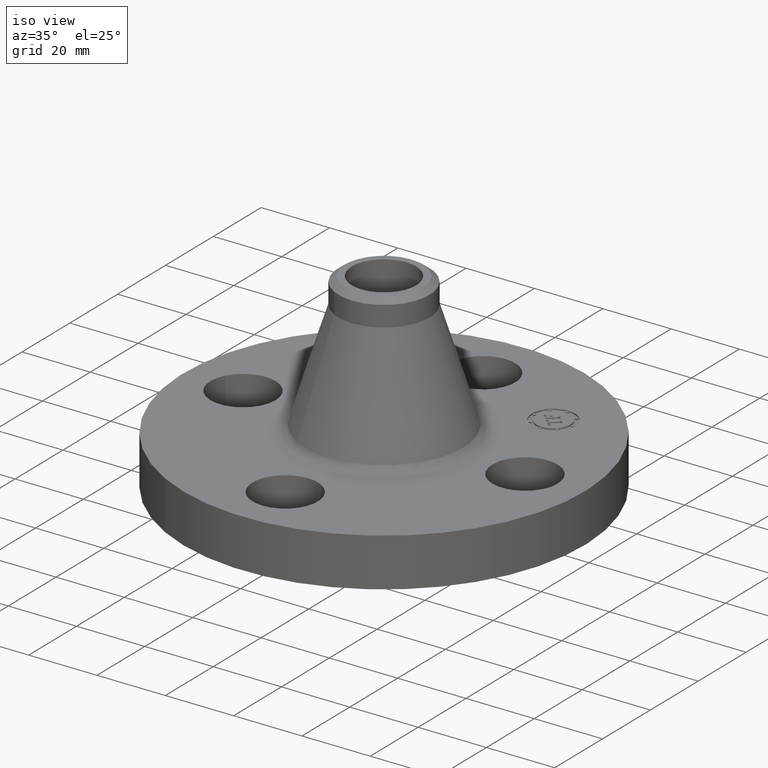
[diagram: clean part render]
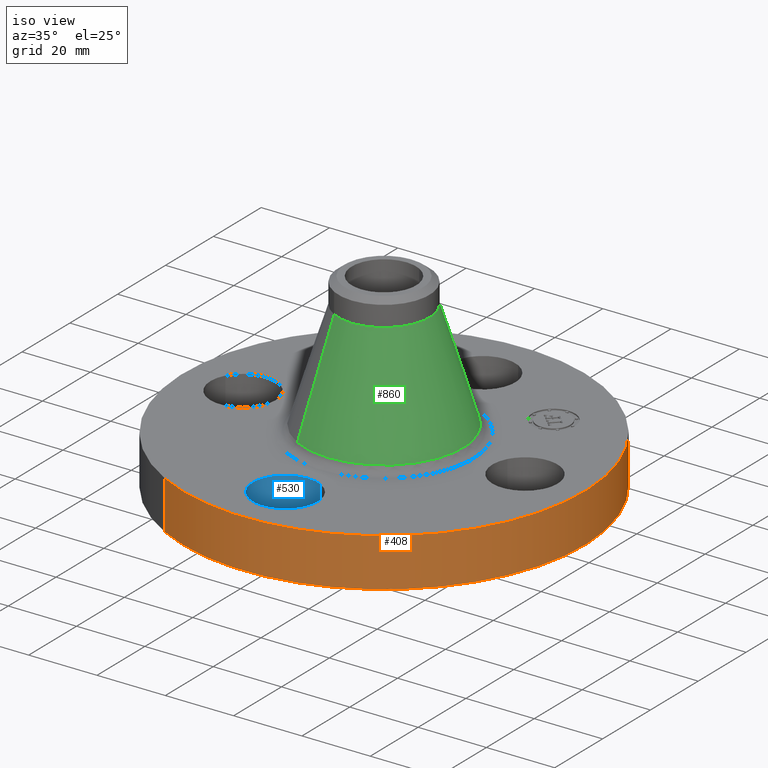
[diagram: same view with three faces highlighted in distinct colors, each labeled with its STEP entity id]
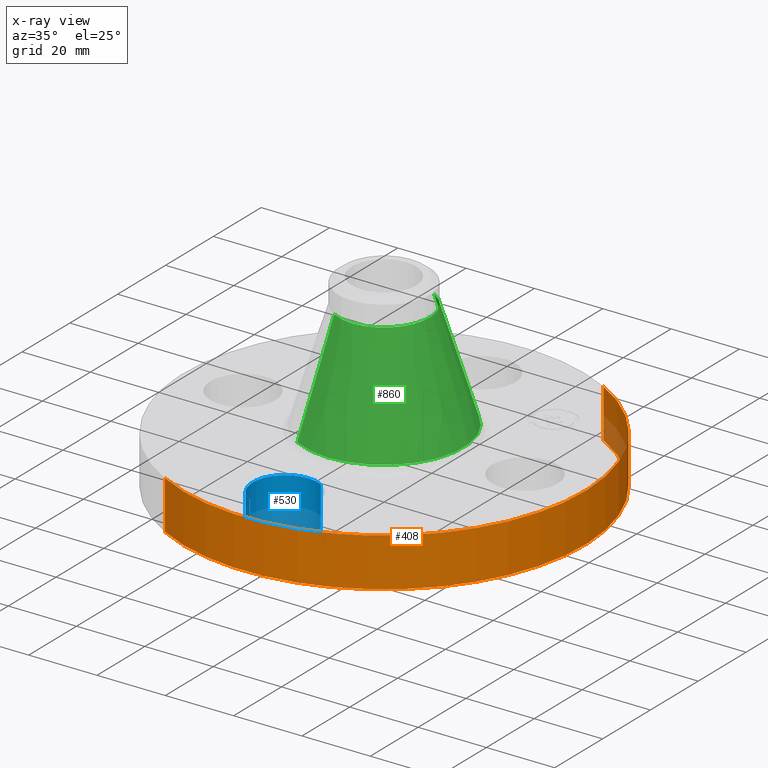
[diagram: x-ray of the same camera — body ghosted, the three highlighted faces saturated]
A machine part, iso view with three faces highlighted in distinct colors.
The next image is the same camera in x-ray (body ghosted, the three faces saturated) — at least one of them is partly hidden behind the body in this view.
Their STEP definitions:

[orange] entity #408 — the highlighted cylindrical surface (partial cylindrical patch) has radius 58.674 mm, axis along (0, 0, -1).
#152=AXIS2_PLACEMENT_3D('Circle Axis2P3D',#150,#151,$) ;
#250=AXIS2_PLACEMENT_3D('Circle Axis2P3D',#248,#249,$) ;
#400=AXIS2_PLACEMENT_3D('Cylinder Axis2P3D',#397,#398,#399) ;
#145=CARTESIAN_POINT('Vertex',(-1.10747299418,-2.02721571797,4.10632158198E-012)) ;
#147=CARTESIAN_POINT('Vertex',(1.10747299418,2.02721571798,4.10632158198E-012)) ;
#150=CARTESIAN_POINT('Axis2P3D Location',(1.28113093187E-011,-2.18922692747E-011,0.)) ;
#248=CARTESIAN_POINT('Axis2P3D Location',(-3.08543392061E-011,3.97540268421E-012,0.560000000002)) ;
#252=CARTESIAN_POINT('Vertex',(1.10747299418,2.02721571798,0.559999999983)) ;
#254=CARTESIAN_POINT('Vertex',(-1.10747299418,-2.02721571798,0.559999999983)) ;
#373=CARTESIAN_POINT('Line Origine',(-1.10747299418,-2.02721571798,0.279999999994)) ;
#378=CARTESIAN_POINT('Line Origine',(1.10747299418,2.02721571798,0.279999999994)) ;
#397=CARTESIAN_POINT('Axis2P3D Location',(0.,0.,1.06375)) ;
#151=DIRECTION('Axis2P3D Direction',(0.,0.,-0.0393700787402)) ;
#249=DIRECTION('Axis2P3D Direction',(0.,0.,-0.0393700787402)) ;
#374=DIRECTION('Vector Direction',(0.,0.,-0.0393700787402)) ;
#379=DIRECTION('Vector Direction',(0.,0.,-0.0393700787402)) ;
#398=DIRECTION('Axis2P3D Direction',(0.,0.,-0.0393700787402)) ;
#399=DIRECTION('Axis2P3D XDirection',(0.0188750212049,0.0345504945626,0.)) ;
#375=VECTOR('Line Direction',#374,0.0393700787402) ;
#380=VECTOR('Line Direction',#379,0.0393700787402) ;
#403=ORIENTED_EDGE('',*,*,#154,.F.) ;
#404=ORIENTED_EDGE('',*,*,#382,.T.) ;
#405=ORIENTED_EDGE('',*,*,#256,.T.) ;
#406=ORIENTED_EDGE('',*,*,#377,.F.) ;
#408=ADVANCED_FACE('PartBody',(#407),#401,.T.) ;
#153=CIRCLE('generated circle',#152,2.31000000001) ;
#251=CIRCLE('generated circle',#250,2.31000000004) ;
#401=CYLINDRICAL_SURFACE('generated cylinder',#400,2.31000000001) ;
#154=EDGE_CURVE('',#148,#146,#153,.T.) ;
#256=EDGE_CURVE('',#253,#255,#251,.T.) ;
#377=EDGE_CURVE('',#146,#255,#376,.F.) ;
#382=EDGE_CURVE('',#148,#253,#381,.F.) ;
#402=EDGE_LOOP('',(#403,#404,#405,#406)) ;
#407=FACE_OUTER_BOUND('',#402,.T.) ;
#376=LINE('Line',#373,#375) ;
#381=LINE('Line',#378,#380) ;
#146=VERTEX_POINT('',#145) ;
#148=VERTEX_POINT('',#147) ;
#253=VERTEX_POINT('',#252) ;
#255=VERTEX_POINT('',#254) ;

[blue] entity #530 — the highlighted cylindrical surface (partial cylindrical patch) has radius 9.525 mm, axis along (0, -0, -1).
#192=AXIS2_PLACEMENT_3D('Circle Axis2P3D',#190,#191,$) ;
#290=AXIS2_PLACEMENT_3D('Circle Axis2P3D',#288,#289,$) ;
#522=AXIS2_PLACEMENT_3D('Cylinder Axis2P3D',#519,#520,#521) ;
#185=CARTESIAN_POINT('Vertex',(0.179784576973,-1.2959065393,0.)) ;
#187=CARTESIAN_POINT('Vertex',(-0.179784576973,-1.95409346069,0.)) ;
#190=CARTESIAN_POINT('Axis2P3D Location',(-3.49676543189E-017,-1.62499999999,0.)) ;
#288=CARTESIAN_POINT('Axis2P3D Location',(-3.49676543189E-017,-1.62500000003,0.560000000002)) ;
#292=CARTESIAN_POINT('Vertex',(-0.179784576973,-1.95409346073,0.560000000002)) ;
#294=CARTESIAN_POINT('Vertex',(0.179784576977,-1.2959065393,0.559999999987)) ;
#495=CARTESIAN_POINT('Line Origine',(0.179784576977,-1.2959065393,0.280000000001)) ;
#500=CARTESIAN_POINT('Line Origine',(-0.179784576977,-1.95409346072,0.280000000001)) ;
#519=CARTESIAN_POINT('Axis2P3D Location',(-1.8023868212E-016,-1.62500000001,0.556062992128)) ;
#191=DIRECTION('Axis2P3D Direction',(0.,0.,-0.0393700787402)) ;
#289=DIRECTION('Axis2P3D Direction',(0.,0.,-0.0393700787402)) ;
#496=DIRECTION('Vector Direction',(0.,0.,-0.0393700787402)) ;
#501=DIRECTION('Vector Direction',(0.,0.,-0.0393700787402)) ;
#520=DIRECTION('Axis2P3D Direction',(0.,-0.,-0.0393700787402)) ;
#521=DIRECTION('Axis2P3D XDirection',(-0.0188750212049,-0.0345504945626,0.)) ;
#497=VECTOR('Line Direction',#496,0.0393700787402) ;
#502=VECTOR('Line Direction',#501,0.0393700787402) ;
#525=ORIENTED_EDGE('',*,*,#504,.F.) ;
#526=ORIENTED_EDGE('',*,*,#194,.T.) ;
#527=ORIENTED_EDGE('',*,*,#499,.T.) ;
#528=ORIENTED_EDGE('',*,*,#296,.F.) ;
#530=ADVANCED_FACE('PartBody',(#529),#523,.F.) ;
#193=CIRCLE('generated circle',#192,0.374999999988) ;
#291=CIRCLE('generated circle',#290,0.374999999988) ;
#523=CYLINDRICAL_SURFACE('generated cylinder',#522,0.375000000001) ;
#194=EDGE_CURVE('',#188,#186,#193,.T.) ;
#296=EDGE_CURVE('',#293,#295,#291,.T.) ;
#499=EDGE_CURVE('',#186,#295,#498,.F.) ;
#504=EDGE_CURVE('',#188,#293,#503,.F.) ;
#524=EDGE_LOOP('',(#525,#526,#527,#528)) ;
#529=FACE_OUTER_BOUND('',#524,.T.) ;
#498=LINE('Line',#495,#497) ;
#503=LINE('Line',#500,#502) ;
#186=VERTEX_POINT('',#185) ;
#188=VERTEX_POINT('',#187) ;
#293=VERTEX_POINT('',#292) ;
#295=VERTEX_POINT('',#294) ;

[green] entity #860 — the highlighted conical surface has half-angle 17.256 deg.
#679=AXIS2_PLACEMENT_3D('Circle Axis2P3D',#677,#678,$) ;
#847=AXIS2_PLACEMENT_3D('Cone Axis2P3D',#844,#845,#846) ;
#851=AXIS2_PLACEMENT_3D('Circle Axis2P3D',#849,#850,$) ;
#643=CARTESIAN_POINT('Vertex',(-0.438090692601,-0.801919633801,0.644403161619)) ;
#650=CARTESIAN_POINT('Vertex',(0.438090692601,0.801919633801,0.644403161619)) ;
#677=CARTESIAN_POINT('Axis2P3D Location',(0.,0.,0.644403161619)) ;
#811=CARTESIAN_POINT('Line Origine',(-0.344894550183,-0.631325239395,1.27021689046)) ;
#815=CARTESIAN_POINT('Vertex',(-0.251698407768,-0.460730844994,1.89603061929)) ;
#822=CARTESIAN_POINT('Vertex',(0.251698407768,0.460730844994,1.89603061929)) ;
#825=CARTESIAN_POINT('Line Origine',(0.344894550183,0.631325239395,1.27021689046)) ;
#844=CARTESIAN_POINT('Axis2P3D Location',(0.,0.,1.89603061929)) ;
#849=CARTESIAN_POINT('Axis2P3D Location',(0.,0.,1.89603061929)) ;
#678=DIRECTION('Axis2P3D Direction',(-0.,0.,-0.0393700787402)) ;
#812=DIRECTION('Vector Direction',(-0.00559909232789,-0.0102490697589,-0.0375980030612)) ;
#826=DIRECTION('Vector Direction',(0.00559909232789,0.0102490697589,-0.0375980030612)) ;
#845=DIRECTION('Axis2P3D Direction',(0.,0.,-0.0393700787402)) ;
#846=DIRECTION('Axis2P3D XDirection',(0.0188750212049,0.0345504945626,0.)) ;
#850=DIRECTION('Axis2P3D Direction',(-0.,0.,-0.0393700787402)) ;
#813=VECTOR('Line Direction',#812,0.0393700787402) ;
#827=VECTOR('Line Direction',#826,0.0393700787402) ;
#855=ORIENTED_EDGE('',*,*,#681,.F.) ;
#856=ORIENTED_EDGE('',*,*,#829,.T.) ;
#857=ORIENTED_EDGE('',*,*,#853,.T.) ;
#858=ORIENTED_EDGE('',*,*,#817,.F.) ;
#860=ADVANCED_FACE('PartBody',(#859),#848,.T.) ;
#680=CIRCLE('generated circle',#679,0.913782552919) ;
#852=CIRCLE('generated circle',#851,0.525000000002) ;
#848=CONICAL_SURFACE('Cone',#847,0.525000000002,0.301172693271) ;
#681=EDGE_CURVE('',#651,#644,#680,.T.) ;
#817=EDGE_CURVE('',#644,#816,#814,.F.) ;
#829=EDGE_CURVE('',#651,#823,#828,.F.) ;
#853=EDGE_CURVE('',#823,#816,#852,.T.) ;
#854=EDGE_LOOP('',(#855,#856,#857,#858)) ;
#859=FACE_OUTER_BOUND('',#854,.T.) ;
#814=LINE('Line',#811,#813) ;
#828=LINE('Line',#825,#827) ;
#644=VERTEX_POINT('',#643) ;
#651=VERTEX_POINT('',#650) ;
#816=VERTEX_POINT('',#815) ;
#823=VERTEX_POINT('',#822) ;